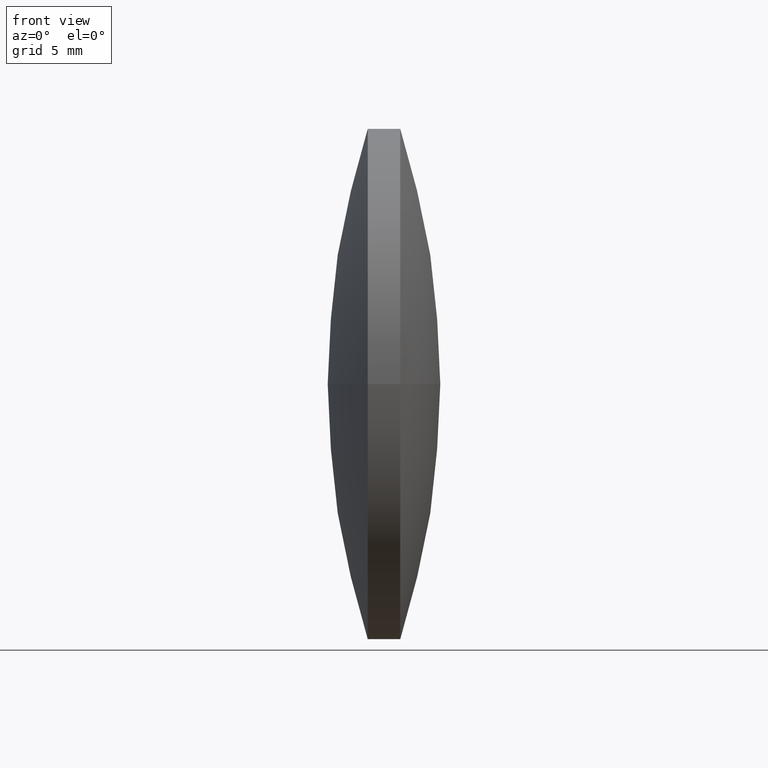
[diagram: clean part render]
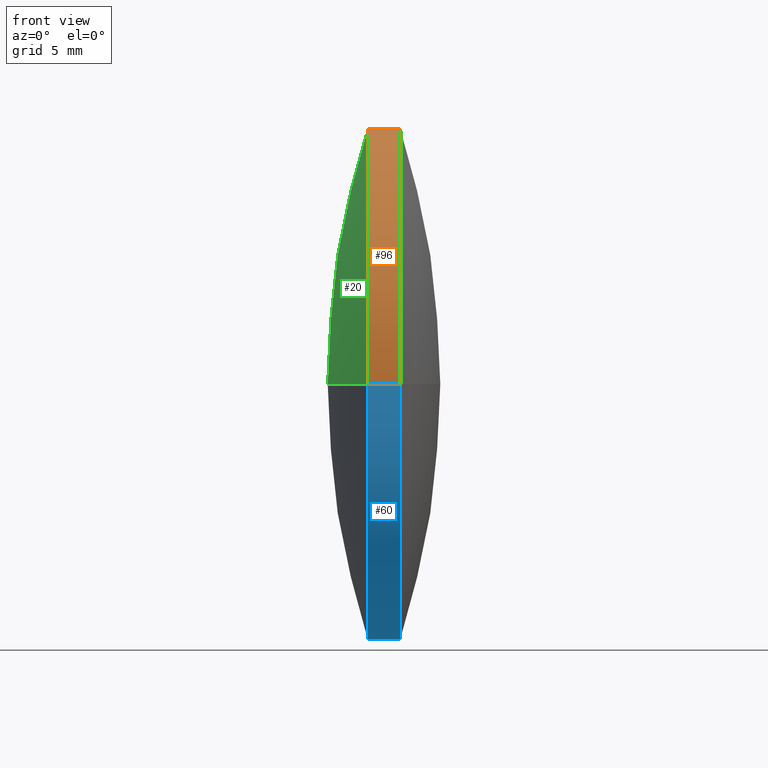
[diagram: same view with three faces highlighted in distinct colors, each labeled with its STEP entity id]
A machine part, front view with three faces highlighted in distinct colors.
Their STEP definitions:

[orange] entity #96 — the highlighted cylindrical surface (partial cylindrical patch) has radius 12.5 mm, axis along (-1, 0, -0).
#23 = EDGE_CURVE ( 'NONE', #25, #172, #44, .T. ) ;
#25 = VERTEX_POINT ( 'NONE', #233 ) ;
#34 = DIRECTION ( 'NONE',  ( -4.440892098500634100E-015, -1.000000000000000000, 0.0000000000000000000 ) ) ;
#37 = VERTEX_POINT ( 'NONE', #142 ) ;
#44 = CIRCLE ( 'NONE', #296, 12.49999999999998400 ) ;
#65 = ORIENTED_EDGE ( 'NONE', *, *, #98, .T. ) ;
#67 = VECTOR ( 'NONE', #180, 1000.000000000000000 ) ;
#79 = LINE ( 'NONE', #104, #67 ) ;
#86 = VERTEX_POINT ( 'NONE', #189 ) ;
#96 = ADVANCED_FACE ( 'NONE', ( #217 ), #195, .T. ) ;
#98 = EDGE_CURVE ( 'NONE', #172, #37, #234, .T. ) ;
#104 = CARTESIAN_POINT ( 'NONE',  ( 81.21296991275001200, 35.35050494407940400, 0.0000000000000000000 ) ) ;
#105 = CARTESIAN_POINT ( 'NONE',  ( 85.89164741600619400, 60.35050494407934000, 0.0000000000000000000 ) ) ;
#114 = DIRECTION ( 'NONE',  ( -1.000000000000000000, 4.264506765781650100E-015, -0.0000000000000000000 ) ) ;
#117 = VECTOR ( 'NONE', #248, 1000.000000000000000 ) ;
#122 = DIRECTION ( 'NONE',  ( -4.440892098500634100E-015, -1.000000000000000000, 0.0000000000000000000 ) ) ;
#142 = CARTESIAN_POINT ( 'NONE',  ( 84.30164741600620500, 60.35050494407931200, 0.0000000000000000000 ) ) ;
#146 = EDGE_CURVE ( 'NONE', #86, #37, #210, .T. ) ;
#150 = ORIENTED_EDGE ( 'NONE', *, *, #213, .F. ) ;
#153 = AXIS2_PLACEMENT_3D ( 'NONE', #298, #178, #34 ) ;
#165 = DIRECTION ( 'NONE',  ( -4.440892098500631700E-015, -1.000000000000000000, 0.0000000000000000000 ) ) ;
#172 = VERTEX_POINT ( 'NONE', #105 ) ;
#178 = DIRECTION ( 'NONE',  ( -1.000000000000000000, 4.264506765781650100E-015, -0.0000000000000000000 ) ) ;
#180 = DIRECTION ( 'NONE',  ( -1.000000000000000000, 4.264506765781650100E-015, -0.0000000000000000000 ) ) ;
#189 = CARTESIAN_POINT ( 'NONE',  ( 84.30164741600609100, 35.35050494407955300, -1.530808498934185800E-015 ) ) ;
#193 = EDGE_LOOP ( 'NONE', ( #252, #65, #276, #150 ) ) ;
#195 = CYLINDRICAL_SURFACE ( 'NONE', #245, 12.49999999999997700 ) ;
#210 = CIRCLE ( 'NONE', #153, 12.49999999999997700 ) ;
#212 = CARTESIAN_POINT ( 'NONE',  ( 81.21296991275006900, 47.85050494407938300, 0.0000000000000000000 ) ) ;
#213 = EDGE_CURVE ( 'NONE', #25, #86, #79, .T. ) ;
#217 = FACE_OUTER_BOUND ( 'NONE', #193, .T. ) ;
#223 = CARTESIAN_POINT ( 'NONE',  ( 81.21296991275012500, 60.35050494407935400, 1.530808498934189200E-015 ) ) ;
#233 = CARTESIAN_POINT ( 'NONE',  ( 85.89164741600608000, 35.35050494407919800, -1.530808498934189700E-015 ) ) ;
#234 = LINE ( 'NONE', #223, #117 ) ;
#245 = AXIS2_PLACEMENT_3D ( 'NONE', #212, #262, #122 ) ;
#248 = DIRECTION ( 'NONE',  ( -1.000000000000000000, 4.264506765781650100E-015, -0.0000000000000000000 ) ) ;
#252 = ORIENTED_EDGE ( 'NONE', *, *, #23, .T. ) ;
#256 = CARTESIAN_POINT ( 'NONE',  ( 85.89164741600615100, 47.85050494407936100, 0.0000000000000000000 ) ) ;
#262 = DIRECTION ( 'NONE',  ( -1.000000000000000000, 4.264506765781650100E-015, -0.0000000000000000000 ) ) ;
#276 = ORIENTED_EDGE ( 'NONE', *, *, #146, .F. ) ;
#296 = AXIS2_PLACEMENT_3D ( 'NONE', #256, #114, #165 ) ;
#298 = CARTESIAN_POINT ( 'NONE',  ( 84.30164741600614800, 47.85050494407936800, 0.0000000000000000000 ) ) ;

[blue] entity #60 — the highlighted cylindrical surface (partial cylindrical patch) has radius 12.5 mm, axis along (-1, 0, -0).
#14 = EDGE_LOOP ( 'NONE', ( #186, #103, #286, #258 ) ) ;
#25 = VERTEX_POINT ( 'NONE', #233 ) ;
#37 = VERTEX_POINT ( 'NONE', #142 ) ;
#42 = AXIS2_PLACEMENT_3D ( 'NONE', #97, #48, #290 ) ;
#45 = AXIS2_PLACEMENT_3D ( 'NONE', #260, #289, #271 ) ;
#47 = DIRECTION ( 'NONE',  ( -4.440892098500634100E-015, -1.000000000000000000, 0.0000000000000000000 ) ) ;
#48 = DIRECTION ( 'NONE',  ( -1.000000000000000000, 4.264506765781650100E-015, -0.0000000000000000000 ) ) ;
#52 = AXIS2_PLACEMENT_3D ( 'NONE', #120, #144, #47 ) ;
#60 = ADVANCED_FACE ( 'NONE', ( #209 ), #68, .T. ) ;
#67 = VECTOR ( 'NONE', #180, 1000.000000000000000 ) ;
#68 = CYLINDRICAL_SURFACE ( 'NONE', #52, 12.49999999999997700 ) ;
#79 = LINE ( 'NONE', #104, #67 ) ;
#86 = VERTEX_POINT ( 'NONE', #189 ) ;
#94 = EDGE_CURVE ( 'NONE', #37, #86, #285, .T. ) ;
#97 = CARTESIAN_POINT ( 'NONE',  ( 84.30164741600614800, 47.85050494407936800, 0.0000000000000000000 ) ) ;
#98 = EDGE_CURVE ( 'NONE', #172, #37, #234, .T. ) ;
#103 = ORIENTED_EDGE ( 'NONE', *, *, #283, .T. ) ;
#104 = CARTESIAN_POINT ( 'NONE',  ( 81.21296991275001200, 35.35050494407940400, 0.0000000000000000000 ) ) ;
#105 = CARTESIAN_POINT ( 'NONE',  ( 85.89164741600619400, 60.35050494407934000, 0.0000000000000000000 ) ) ;
#117 = VECTOR ( 'NONE', #248, 1000.000000000000000 ) ;
#120 = CARTESIAN_POINT ( 'NONE',  ( 81.21296991275006900, 47.85050494407938300, 0.0000000000000000000 ) ) ;
#142 = CARTESIAN_POINT ( 'NONE',  ( 84.30164741600620500, 60.35050494407931200, 0.0000000000000000000 ) ) ;
#144 = DIRECTION ( 'NONE',  ( -1.000000000000000000, 4.264506765781650100E-015, -0.0000000000000000000 ) ) ;
#149 = CIRCLE ( 'NONE', #45, 12.49999999999998400 ) ;
#172 = VERTEX_POINT ( 'NONE', #105 ) ;
#180 = DIRECTION ( 'NONE',  ( -1.000000000000000000, 4.264506765781650100E-015, -0.0000000000000000000 ) ) ;
#186 = ORIENTED_EDGE ( 'NONE', *, *, #98, .F. ) ;
#189 = CARTESIAN_POINT ( 'NONE',  ( 84.30164741600609100, 35.35050494407955300, -1.530808498934185800E-015 ) ) ;
#209 = FACE_OUTER_BOUND ( 'NONE', #14, .T. ) ;
#213 = EDGE_CURVE ( 'NONE', #25, #86, #79, .T. ) ;
#223 = CARTESIAN_POINT ( 'NONE',  ( 81.21296991275012500, 60.35050494407935400, 1.530808498934189200E-015 ) ) ;
#233 = CARTESIAN_POINT ( 'NONE',  ( 85.89164741600608000, 35.35050494407919800, -1.530808498934189700E-015 ) ) ;
#234 = LINE ( 'NONE', #223, #117 ) ;
#248 = DIRECTION ( 'NONE',  ( -1.000000000000000000, 4.264506765781650100E-015, -0.0000000000000000000 ) ) ;
#258 = ORIENTED_EDGE ( 'NONE', *, *, #94, .F. ) ;
#260 = CARTESIAN_POINT ( 'NONE',  ( 85.89164741600615100, 47.85050494407936100, 0.0000000000000000000 ) ) ;
#271 = DIRECTION ( 'NONE',  ( -4.440892098500631700E-015, -1.000000000000000000, 0.0000000000000000000 ) ) ;
#283 = EDGE_CURVE ( 'NONE', #172, #25, #149, .T. ) ;
#285 = CIRCLE ( 'NONE', #42, 12.49999999999997700 ) ;
#286 = ORIENTED_EDGE ( 'NONE', *, *, #213, .T. ) ;
#289 = DIRECTION ( 'NONE',  ( -1.000000000000000000, 4.264506765781650100E-015, -0.0000000000000000000 ) ) ;
#290 = DIRECTION ( 'NONE',  ( -4.440892098500634100E-015, -1.000000000000000000, 0.0000000000000000000 ) ) ;

[green] entity #20 — the highlighted spherical surface has radius 40.9391 mm.
#3 = ORIENTED_EDGE ( 'NONE', *, *, #148, .T. ) ;
#8 = ORIENTED_EDGE ( 'NONE', *, *, #146, .T. ) ;
#20 = ADVANCED_FACE ( 'NONE', ( #31 ), #134, .T. ) ;
#31 = FACE_OUTER_BOUND ( 'NONE', #136, .T. ) ;
#33 = AXIS2_PLACEMENT_3D ( 'NONE', #206, #140, #163 ) ;
#34 = DIRECTION ( 'NONE',  ( -4.440892098500634100E-015, -1.000000000000000000, 0.0000000000000000000 ) ) ;
#37 = VERTEX_POINT ( 'NONE', #142 ) ;
#59 = EDGE_CURVE ( 'NONE', #86, #255, #141, .T. ) ;
#69 = DIRECTION ( 'NONE',  ( 0.0000000000000000000, 1.000000000000000000, 1.224646799147353200E-016 ) ) ;
#70 = CIRCLE ( 'NONE', #179, 40.93913682864476300 ) ;
#75 = CARTESIAN_POINT ( 'NONE',  ( 82.34664741600623500, 47.85050494407952500, 0.0000000000000000000 ) ) ;
#82 = DIRECTION ( 'NONE',  ( 1.000000000000000000, 0.0000000000000000000, 0.0000000000000000000 ) ) ;
#86 = VERTEX_POINT ( 'NONE', #189 ) ;
#121 = DIRECTION ( 'NONE',  ( 5.222514560656729000E-031, 1.224646799147353200E-016, -1.000000000000000000 ) ) ;
#134 = SPHERICAL_SURFACE ( 'NONE', #33, 40.93913682864477700 ) ;
#136 = EDGE_LOOP ( 'NONE', ( #157, #8, #3 ) ) ;
#140 = DIRECTION ( 'NONE',  ( 0.0000000000000000000, 0.0000000000000000000, -1.000000000000000000 ) ) ;
#141 = CIRCLE ( 'NONE', #159, 40.93913682864477700 ) ;
#142 = CARTESIAN_POINT ( 'NONE',  ( 84.30164741600620500, 60.35050494407931200, 0.0000000000000000000 ) ) ;
#146 = EDGE_CURVE ( 'NONE', #86, #37, #210, .T. ) ;
#148 = EDGE_CURVE ( 'NONE', #37, #255, #70, .T. ) ;
#153 = AXIS2_PLACEMENT_3D ( 'NONE', #298, #178, #34 ) ;
#157 = ORIENTED_EDGE ( 'NONE', *, *, #59, .F. ) ;
#159 = AXIS2_PLACEMENT_3D ( 'NONE', #237, #121, #69 ) ;
#163 = DIRECTION ( 'NONE',  ( 4.406815958448730300E-015, 1.000000000000000000, 0.0000000000000000000 ) ) ;
#178 = DIRECTION ( 'NONE',  ( -1.000000000000000000, 4.264506765781650100E-015, -0.0000000000000000000 ) ) ;
#179 = AXIS2_PLACEMENT_3D ( 'NONE', #201, #225, #82 ) ;
#189 = CARTESIAN_POINT ( 'NONE',  ( 84.30164741600609100, 35.35050494407955300, -1.530808498934185800E-015 ) ) ;
#201 = CARTESIAN_POINT ( 'NONE',  ( 123.2857842446510100, 47.85050494407934700, 0.0000000000000000000 ) ) ;
#206 = CARTESIAN_POINT ( 'NONE',  ( 123.2857842446510100, 47.85050494407934700, 0.0000000000000000000 ) ) ;
#210 = CIRCLE ( 'NONE', #153, 12.49999999999997700 ) ;
#225 = DIRECTION ( 'NONE',  ( 0.0000000000000000000, 0.0000000000000000000, 1.000000000000000000 ) ) ;
#237 = CARTESIAN_POINT ( 'NONE',  ( 123.2857842446510100, 47.85050494407934700, 0.0000000000000000000 ) ) ;
#255 = VERTEX_POINT ( 'NONE', #75 ) ;
#298 = CARTESIAN_POINT ( 'NONE',  ( 84.30164741600614800, 47.85050494407936800, 0.0000000000000000000 ) ) ;